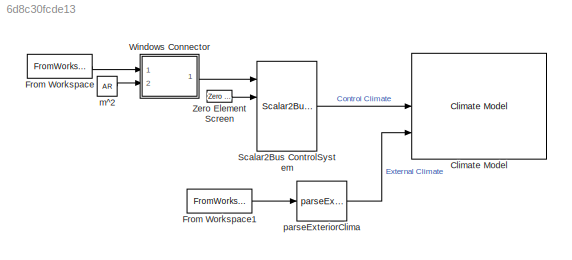
MODEL slx_6d8c30fcde13
KIND model
CONFIG AbsTol = auto
CONFIG EnableMultiTasking = off
CONFIG FixedStep = auto
CONFIG MaxStep = auto
CONFIG MinStep = auto
CONFIG RelTol = 1e-3
CONFIG SampleTimeConstraint = Unconstrained
CONFIG SolverName = ode23tb
CONFIG StartTime = 0.0
CONFIG StopTime = 16
WORKSPACE source: mxarray member
WORKSPACE params: climate_p (value not decoded)
BLOCK [Reference] Climate Model  REF=HORTISIM/Climate/Models/Climate Model
  Ports = [3, 1]
  SourceBlock = HORTISIM/Climate/Models/Climate Model
  SourceProductName = Horti Simulator
BLOCK [FromWorkspace] From Workspace
  VariableName = windows
BLOCK [FromWorkspace] From Workspace1
  VariableName = climate
BLOCK [Reference] Scalar2Bus ControlSystem  REF=HORTISIM/Other 
Functions/Scalar2Bus 
Control Climate
  Ports = [4, 1]
  SourceBlock = HORTISIM/Other \nFunctions/Scalar2Bus \nControl Climate
  SourceProductName = Horti Simulator
  SourceType = SubSystem
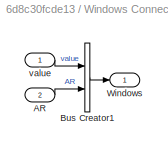
BLOCK [SubSystem] Windows Connector
  Ports = [2, 1]
  RequestExecContextInheritance = off
BLOCK [Inport] Windows Connector/AR
  Port = 2
BLOCK [BusCreator] Windows Connector/Bus Creator1
  DisplayOption = bar
  InheritFromInputs = on
  Inputs = 2
  Ports = [2, 1]
BLOCK [Outport] Windows Connector/Windows
BLOCK [Inport] Windows Connector/value
BLOCK [Reference] Zero Element Screen  REF=HORTISIM/Other 
Functions/Zero Element
Screen
  Ports = [0, 1]
  SourceBlock = HORTISIM/Other \nFunctions/Zero Element\nScreen
  SourceProductName = Horti Simulator
  SourceType = SubSystem
BLOCK [Constant] m^2
  Value = AR
BLOCK [Reference] parseExteriorClima   REF=HORTISIM/Other 
Functions/parseExteriorClima
  Ports = [1, 1]
  SourceBlock = HORTISIM/Other \nFunctions/parseExteriorClima
  SourceProductName = Horti Simulator
  SourceType = SubSystem
LINE From Workspace1:1 -> parseExteriorClima :1
LINE From Workspace:1 -> Windows Connector:1
LINE Scalar2Bus ControlSystem:1 -> Climate Model:2
LINE Windows Connector/AR:1 -> Windows Connector/Bus Creator1:2
LINE Windows Connector/Bus Creator1:1 -> Windows Connector/Windows:1
LINE Windows Connector/value:1 -> Windows Connector/Bus Creator1:1
LINE Windows Connector:1 -> Scalar2Bus ControlSystem:1
LINE Zero Element Screen:1 -> Scalar2Bus ControlSystem:2
LINE m^2:1 -> Windows Connector:2
LINE parseExteriorClima :1 -> Climate Model:3
